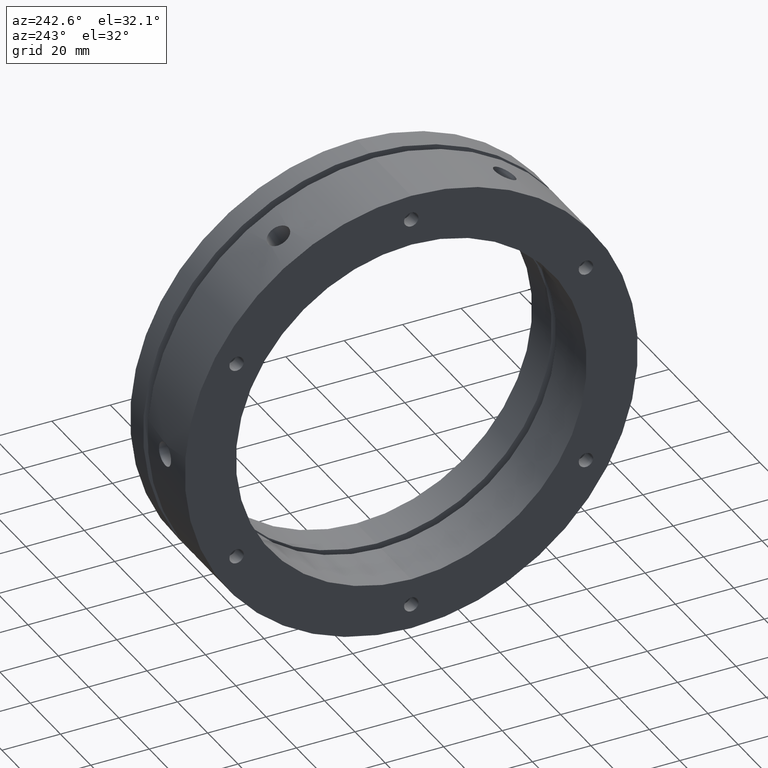
[diagram: clean part render]
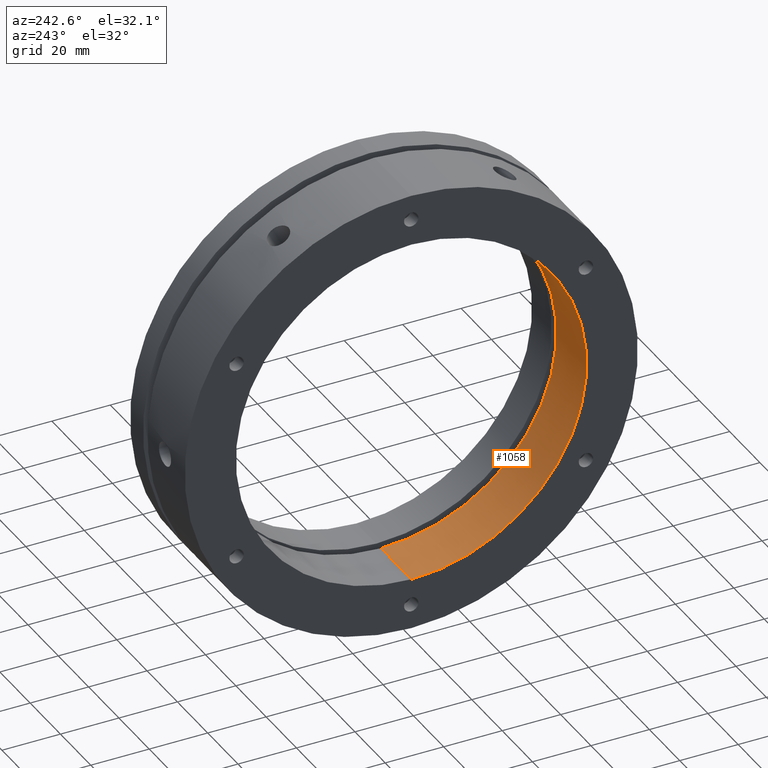
[diagram: same view with one face highlighted and labeled with its STEP entity id]
A machine part, auxiliary view. The second image highlights one B-rep face of the part: STEP entity #1058.
In plain terms, the highlighted cylindrical surface (partial cylindrical patch) has radius 60 mm, axis along (1, 0, 0).
Its self-contained STEP definition (entity closure, byte-faithful):
#57 = FACE_OUTER_BOUND ( 'NONE', #3227, .T. ) ;
#92 = CYLINDRICAL_SURFACE ( 'NONE', #3924, 60.00000000000000000 ) ;
#961 = DIRECTION ( 'NONE',  ( 0.0000000000000000000, 0.0000000000000000000, -1.000000000000000000 ) ) ;
#963 = DIRECTION ( 'NONE',  ( 1.000000000000000000, 0.0000000000000000000, 0.0000000000000000000 ) ) ;
#965 = CARTESIAN_POINT ( 'NONE',  ( 17.99999999999998600, 0.0000000000000000000, 0.0000000000000000000 ) ) ;
#1058 = ADVANCED_FACE ( 'NONE', ( #57 ), #92, .F. ) ;
#1436 = CIRCLE ( 'NONE', #3287, 60.00000000000000000 ) ;
#1438 = LINE ( 'NONE', #2136, #1440 ) ;
#1439 = CIRCLE ( 'NONE', #3286, 60.00000000000000000 ) ;
#1440 = VECTOR ( 'NONE', #2134, 1000.000000000000000 ) ;
#1441 = LINE ( 'NONE', #2141, #1443 ) ;
#1443 = VECTOR ( 'NONE', #2137, 1000.000000000000000 ) ;
#2134 = DIRECTION ( 'NONE',  ( 1.000000000000000000, 0.0000000000000000000, 0.0000000000000000000 ) ) ;
#2136 = CARTESIAN_POINT ( 'NONE',  ( 17.99999999999998600, 0.0000000000000000000, -60.00000000000000000 ) ) ;
#2137 = DIRECTION ( 'NONE',  ( 1.000000000000000000, 0.0000000000000000000, 0.0000000000000000000 ) ) ;
#2141 = CARTESIAN_POINT ( 'NONE',  ( 17.99999999999998600, 7.347880794884118400E-015, 60.00000000000000000 ) ) ;
#2142 = CARTESIAN_POINT ( 'NONE',  ( 19.99999999999998600, 0.0000000000000000000, 0.0000000000000000000 ) ) ;
#2143 = DIRECTION ( 'NONE',  ( -1.000000000000000000, -0.0000000000000000000, -0.0000000000000000000 ) ) ;
#2144 = DIRECTION ( 'NONE',  ( 0.0000000000000000000, 0.0000000000000000000, -1.000000000000000000 ) ) ;
#2148 = CARTESIAN_POINT ( 'NONE',  ( -1.734723475976807100E-014, 0.0000000000000000000, 0.0000000000000000000 ) ) ;
#2149 = DIRECTION ( 'NONE',  ( 1.000000000000000000, 0.0000000000000000000, 0.0000000000000000000 ) ) ;
#2150 = DIRECTION ( 'NONE',  ( 0.0000000000000000000, 0.0000000000000000000, -1.000000000000000000 ) ) ;
#2940 = EDGE_CURVE ( 'NONE', #3768, #3747, #1438, .T. ) ;
#2941 = EDGE_CURVE ( 'NONE', #3747, #3727, #1436, .T. ) ;
#2942 = EDGE_CURVE ( 'NONE', #3756, #3727, #1441, .T. ) ;
#2943 = EDGE_CURVE ( 'NONE', #3756, #3768, #1439, .T. ) ;
#3227 = EDGE_LOOP ( 'NONE', ( #3507, #3508, #3509, #3510 ) ) ;
#3286 = AXIS2_PLACEMENT_3D ( 'NONE', #2148, #2149, #2150 ) ;
#3287 = AXIS2_PLACEMENT_3D ( 'NONE', #2142, #2143, #2144 ) ;
#3507 = ORIENTED_EDGE ( 'NONE', *, *, #2943, .F. ) ;
#3508 = ORIENTED_EDGE ( 'NONE', *, *, #2942, .T. ) ;
#3509 = ORIENTED_EDGE ( 'NONE', *, *, #2941, .F. ) ;
#3510 = ORIENTED_EDGE ( 'NONE', *, *, #2940, .F. ) ;
#3727 = VERTEX_POINT ( 'NONE', #4630 ) ;
#3747 = VERTEX_POINT ( 'NONE', #4384 ) ;
#3756 = VERTEX_POINT ( 'NONE', #4393 ) ;
#3768 = VERTEX_POINT ( 'NONE', #4405 ) ;
#3924 = AXIS2_PLACEMENT_3D ( 'NONE', #965, #963, #961 ) ;
#4384 = CARTESIAN_POINT ( 'NONE',  ( 19.99999999999998600, 0.0000000000000000000, -60.00000000000000000 ) ) ;
#4393 = CARTESIAN_POINT ( 'NONE',  ( -1.734723475976807100E-014, 7.347880794884118400E-015, 60.00000000000000000 ) ) ;
#4405 = CARTESIAN_POINT ( 'NONE',  ( -1.734723475976807100E-014, 0.0000000000000000000, -60.00000000000000000 ) ) ;
#4630 = CARTESIAN_POINT ( 'NONE',  ( 19.99999999999998600, 7.347880794884118400E-015, 60.00000000000000000 ) ) ;